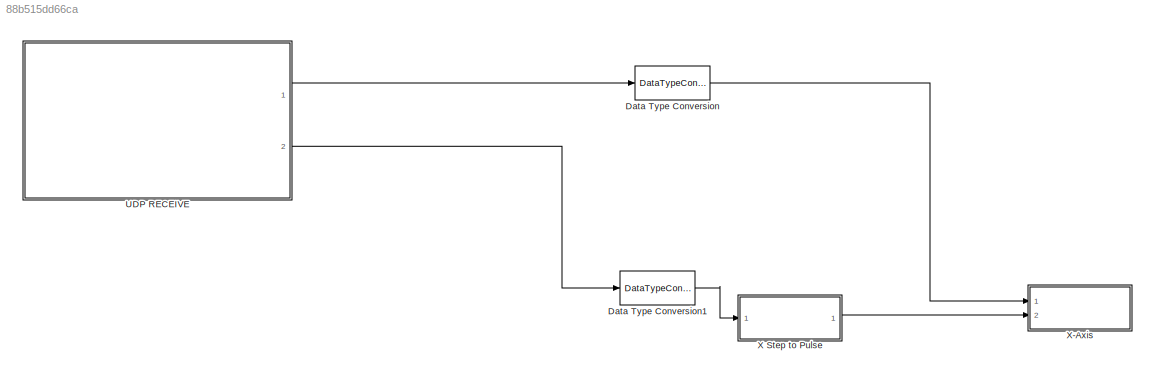
MODEL slx_88b515dd66ca
KIND model
CONFIG AbsTol = auto
CONFIG EnableMultiTasking = off
CONFIG FixedStep = 0.2
CONFIG MaxStep = auto
CONFIG MinStep = auto
CONFIG RelTol = 1e-3
CONFIG SampleTimeConstraint = Unconstrained
CONFIG Solver = FixedStepDiscrete
CONFIG SolverName = FixedStepDiscrete
CONFIG StartTime = 0.0
CONFIG StopTime = 10.0
BLOCK [DataTypeConversion] Data Type Conversion
  RndMeth = Floor
  SaturateOnIntegerOverflow = off
BLOCK [DataTypeConversion] Data Type Conversion1
  RndMeth = Floor
  SaturateOnIntegerOverflow = off
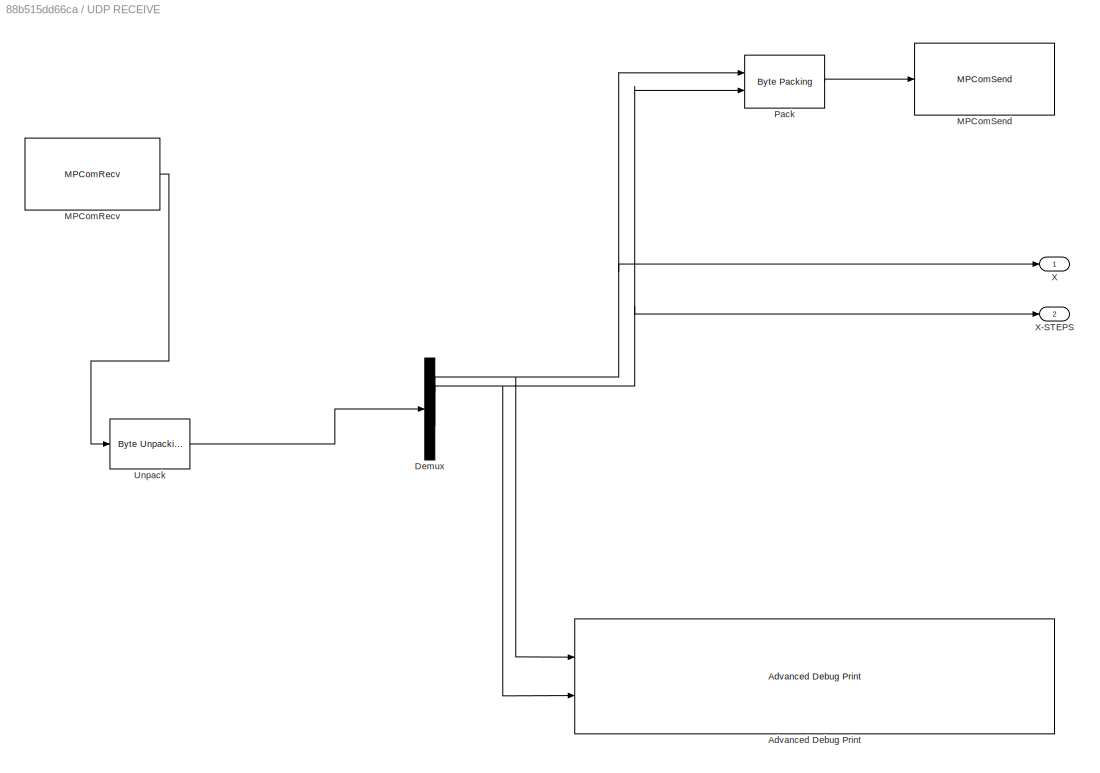
BLOCK [SubSystem] UDP RECEIVE
  Ports = [0, 2]
  RequestExecContextInheritance = off
  Variant = off
BLOCK [Reference] UDP RECEIVE/Advanced Debug Print  REF=stellaris_lp_lib/Debug/Advanced Debug Print
  Ports = [2]
  SourceBlock = stellaris_lp_lib/Debug/Advanced Debug Print
  SourceProductName = Run on Stellaris LaunchPad
  SourceType = Advanced Debug Print
BLOCK [Demux] UDP RECEIVE/Demux
  DisplayOption = bar
  Outputs = 2
  Ports = [1, 2]
BLOCK [Reference] UDP RECEIVE/MPComRecv  REF=stellaris_lp_lib/Communication/MPComRecv
  Ports = [0, 1]
  SourceBlock = stellaris_lp_lib/Communication/MPComRecv
  SourceProductName = Run on Stellaris LaunchPad
  SourceType = Multi-port Serial Receive
BLOCK [Reference] UDP RECEIVE/MPComSend  REF=stellaris_lp_lib/Communication/MPComSend
  Ports = [1, 1]
  SourceBlock = stellaris_lp_lib/Communication/MPComSend
  SourceProductName = Run on Stellaris LaunchPad
  SourceType = Multi-port Serial Send
BLOCK [Reference] UDP RECEIVE/Pack  REF=xpcutilitieslib/Byte Packing 
  Ports = [2, 1]
  SourceBlock = xpcutilitieslib/Byte Packing
  SourceProductBaseCode = XP
  SourceProductName = Simulink Real-Time
  SourceType = xpcbytepacking
BLOCK [Reference] UDP RECEIVE/Unpack  REF=xpcutilitieslib/Byte Unpacking 
  Ports = [1, 1]
  SourceBlock = xpcutilitieslib/Byte Unpacking
  SourceProductBaseCode = XP
  SourceProductName = Simulink Real-Time
  SourceType = xpcbytepacking
BLOCK [Outport] UDP RECEIVE/X
  IconDisplay = Port number
BLOCK [Outport] UDP RECEIVE/X-STEPS 
  IconDisplay = Port number
  Port = 2
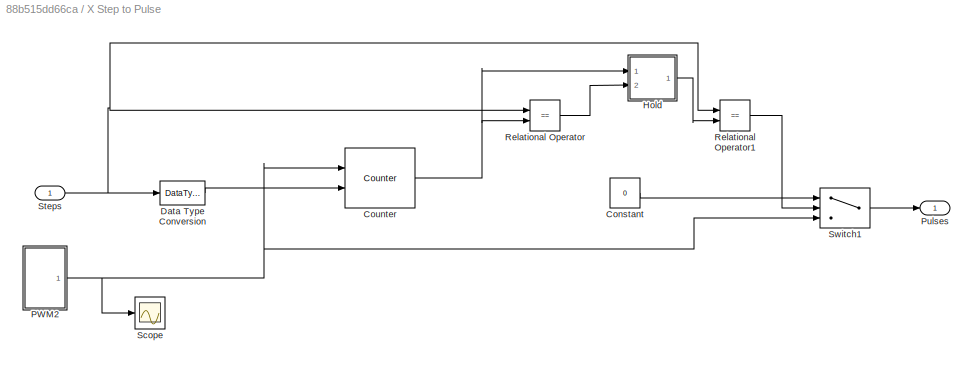
BLOCK [SubSystem] X Step to Pulse
  Ports = [1, 1]
  RequestExecContextInheritance = off
  TreatAsAtomicUnit = on
  Variant = off
BLOCK [Constant] X Step to Pulse/Constant
  OutDataTypeStr = single
  Value = 0
BLOCK [Reference] X Step to Pulse/Counter  REF=dspswit3/Counter
  Ports = [2, 1]
  SourceBlock = dspswit3/Counter
  SourceProductBaseCode = DS
  SourceProductName = DSP System Toolbox
  SourceType = Counter
BLOCK [DataTypeConversion] X Step to Pulse/Data Type Conversion
  OutDataTypeStr = uint8
  RndMeth = Floor
  SaturateOnIntegerOverflow = off
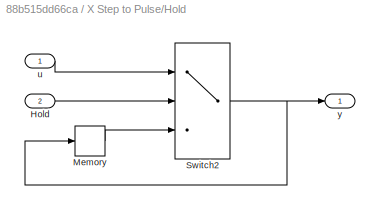
BLOCK [SubSystem] X Step to Pulse/Hold
  Ports = [2, 1]
  RequestExecContextInheritance = off
  TreatAsAtomicUnit = on
  Variant = off
BLOCK [Inport] X Step to Pulse/Hold/Hold
  IconDisplay = Port number
  OutDataTypeStr = boolean
  Port = 2
BLOCK [Memory] X Step to Pulse/Hold/Memory
BLOCK [Switch] X Step to Pulse/Hold/Switch2
  Criteria = u2 > Threshold
  InputSameDT = off
  OutDataTypeStr = single
  SaturateOnIntegerOverflow = off
BLOCK [Inport] X Step to Pulse/Hold/u
  IconDisplay = Port number
  OutDataTypeStr = single
BLOCK [Outport] X Step to Pulse/Hold/y
  IconDisplay = Port number
  OutDataTypeStr = single
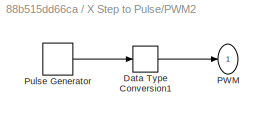
BLOCK [SubSystem] X Step to Pulse/PWM2
  Ports = [0, 1]
  RequestExecContextInheritance = off
  Variant = off
BLOCK [DataTypeConversion] X Step to Pulse/PWM2/Data Type Conversion1
  OutDataTypeStr = single
  RndMeth = Floor
  SaturateOnIntegerOverflow = off
BLOCK [Outport] X Step to Pulse/PWM2/PWM
  IconDisplay = Port number
BLOCK [DiscretePulseGenerator] X Step to Pulse/PWM2/Pulse Generator
  Amplitude = 50
  Period = .1
  Ports = [0, 1]
  PulseType = Time based
  PulseWidth = 98
BLOCK [Outport] X Step to Pulse/Pulses
  IconDisplay = Port number
BLOCK [RelationalOperator] X Step to Pulse/Relational Operator
  InputSameDT = off
  Operator = ==
  OutDataTypeStr = boolean
  Ports = [2, 1]
  RndMeth = Simplest
BLOCK [RelationalOperator] X Step to Pulse/Relational Operator1
  InputSameDT = off
  Operator = ==
  OutDataTypeStr = boolean
  Ports = [2, 1]
  RndMeth = Simplest
BLOCK [Scope] X Step to Pulse/Scope
  NumInputPorts = 1
  Ports = [1]
  ScopeSpecificationString = Simulink.scopes.TimeScopeBlockCfg('CurrentConfiguration', extmgr.ConfigurationSet(extmgr.Configuration('Core','General UI',true),extmgr.Configuration('Core','Source UI',true),extmgr.Configuration('Sources','WiredSimulink',true),extmgr.Configuration('Visuals','Time Domain',true,'SerializedDisplays',{struct('MinYLimReal','-6.25','MaxYLimReal','56.25','YLabelReal','','MinYLimMag','0.00000','MaxYLimMa...<+1310ch>
BLOCK [Inport] X Step to Pulse/Steps
  IconDisplay = Port number
BLOCK [Switch] X Step to Pulse/Switch1
  Criteria = u2 > Threshold
  InputSameDT = off
  SaturateOnIntegerOverflow = off
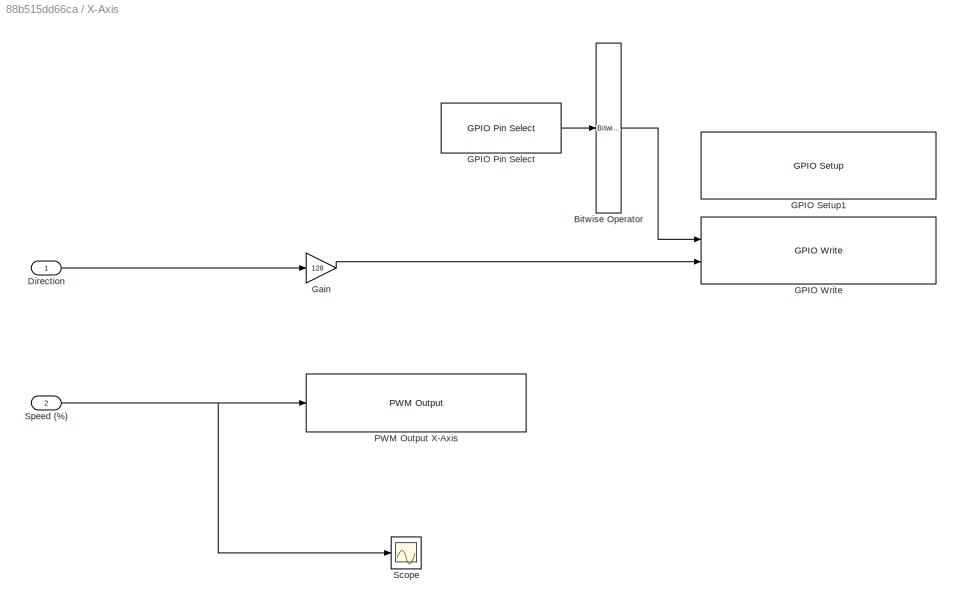
BLOCK [SubSystem] X-Axis
  Ports = [2]
  RequestExecContextInheritance = off
  Variant = off
BLOCK [Reference] X-Axis/Bitwise Operator  REF=simulink/Logic and Bit
Operations/Bitwise
Operator
  Ports = [1, 1]
  SourceBlock = simulink/Logic and Bit\nOperations/Bitwise\nOperator
  SourceProductBaseCode = SL
  SourceProductName = Simulink
  SourceType = Bitwise Operator
BLOCK [Inport] X-Axis/Direction
  IconDisplay = Port number
  OutDataTypeStr = uint8
BLOCK [Reference] X-Axis/GPIO Pin Select  REF=stellaris_lp_lib/GPIO/GPIO Pin Select
  Ports = [0, 1]
  SourceBlock = stellaris_lp_lib/GPIO/GPIO Pin Select
  SourceProductName = Run on Stellaris LaunchPad
  SourceType = GPIO pin selector
BLOCK [Reference] X-Axis/GPIO Setup1  REF=stellaris_lp_lib/GPIO/GPIO Setup
  Ports = []
  SourceBlock = stellaris_lp_lib/GPIO/GPIO Setup
  SourceProductName = Run on Stellaris LaunchPad
  SourceType = GPIO Setup
BLOCK [Reference] X-Axis/GPIO Write  REF=stellaris_lp_lib/GPIO/GPIO Write
  Ports = [2]
  SourceBlock = stellaris_lp_lib/GPIO/GPIO Write
  SourceProductName = Run on Stellaris LaunchPad
  SourceType = GPIO Write
BLOCK [Gain] X-Axis/Gain
  Gain = 128
  OutDataTypeStr = uint8
  ParamDataTypeStr = uint8
  SaturateOnIntegerOverflow = off
BLOCK [Reference] X-Axis/PWM Output X-Axis  REF=stellaris_lp_lib/PWM/PWM Output
  Ports = [1]
  SourceBlock = stellaris_lp_lib/PWM/PWM Output
  SourceProductName = Run on Stellaris LaunchPad
  SourceType = PWM Output
BLOCK [Scope] X-Axis/Scope
  NumInputPorts = 1
  Ports = [1]
  ScopeSpecificationString = Simulink.scopes.TimeScopeBlockCfg('CurrentConfiguration', extmgr.ConfigurationSet(extmgr.Configuration('Core','General UI',true),extmgr.Configuration('Core','Source UI',true),extmgr.Configuration('Sources','WiredSimulink',true,'DataLoggingVariableName','ScopeData1'),extmgr.Configuration('Visuals','Time Domain',true,'SerializedDisplays',{struct('MinYLimReal','-6.25','MaxYLimReal','56.25','YLabelRea...<+1354ch>
BLOCK [Inport] X-Axis/Speed (%)
  IconDisplay = Port number
  OutDataTypeStr = single
  Port = 2
LINE Data Type Conversion1:1 -> X Step to Pulse:1
LINE Data Type Conversion:1 -> X-Axis:1
NET UDP RECEIVE/Demux:1 -> UDP RECEIVE/Advanced Debug Print:1, UDP RECEIVE/Pack:1, UDP RECEIVE/X:1
NET UDP RECEIVE/Demux:2 -> UDP RECEIVE/Advanced Debug Print:2, UDP RECEIVE/Pack:2, UDP RECEIVE/X-STEPS :1
LINE UDP RECEIVE/MPComRecv:1 -> UDP RECEIVE/Unpack:1
LINE UDP RECEIVE/Pack:1 -> UDP RECEIVE/MPComSend:1
LINE UDP RECEIVE/Unpack:1 -> UDP RECEIVE/Demux:1
LINE UDP RECEIVE:1 -> Data Type Conversion:1
LINE UDP RECEIVE:2 -> Data Type Conversion1:1
LINE X Step to Pulse/Constant:1 -> X Step to Pulse/Switch1:1
NET X Step to Pulse/Counter:1 -> X Step to Pulse/Hold:1, X Step to Pulse/Relational Operator:2
LINE X Step to Pulse/Data Type Conversion:1 -> X Step to Pulse/Counter:2
LINE X Step to Pulse/Hold/Hold:1 -> X Step to Pulse/Hold/Switch2:2
LINE X Step to Pulse/Hold/Memory:1 -> X Step to Pulse/Hold/Switch2:3
NET X Step to Pulse/Hold/Switch2:1 -> X Step to Pulse/Hold/Memory:1, X Step to Pulse/Hold/y:1
LINE X Step to Pulse/Hold/u:1 -> X Step to Pulse/Hold/Switch2:1
LINE X Step to Pulse/Hold:1 -> X Step to Pulse/Relational Operator1:2
LINE X Step to Pulse/PWM2/Data Type Conversion1:1 -> X Step to Pulse/PWM2/PWM:1
LINE X Step to Pulse/PWM2/Pulse Generator:1 -> X Step to Pulse/PWM2/Data Type Conversion1:1
NET X Step to Pulse/PWM2:1 -> X Step to Pulse/Counter:1, X Step to Pulse/Scope:1, X Step to Pulse/Switch1:3
LINE X Step to Pulse/Relational Operator1:1 -> X Step to Pulse/Switch1:2
LINE X Step to Pulse/Relational Operator:1 -> X Step to Pulse/Hold:2
NET X Step to Pulse/Steps:1 -> X Step to Pulse/Data Type Conversion:1, X Step to Pulse/Relational Operator1:1, X Step to Pulse/Relational Operator:1
LINE X Step to Pulse/Switch1:1 -> X Step to Pulse/Pulses:1
LINE X Step to Pulse:1 -> X-Axis:2
LINE X-Axis/Bitwise Operator:1 -> X-Axis/GPIO Write:1
LINE X-Axis/Direction:1 -> X-Axis/Gain:1
LINE X-Axis/GPIO Pin Select:1 -> X-Axis/Bitwise Operator:1
LINE X-Axis/Gain:1 -> X-Axis/GPIO Write:2
NET X-Axis/Speed (%):1 -> X-Axis/PWM Output X-Axis:1, X-Axis/Scope:1
note: NET lines group one-source signal fan-out (src -> all destinations, sorted); 1:1 wires keep LINE
